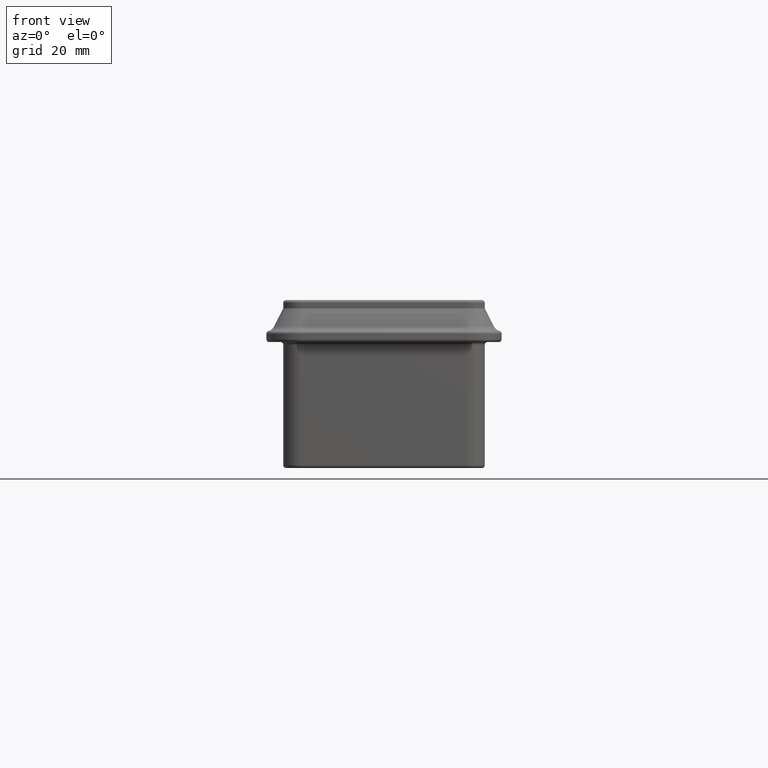
[diagram: clean part render]
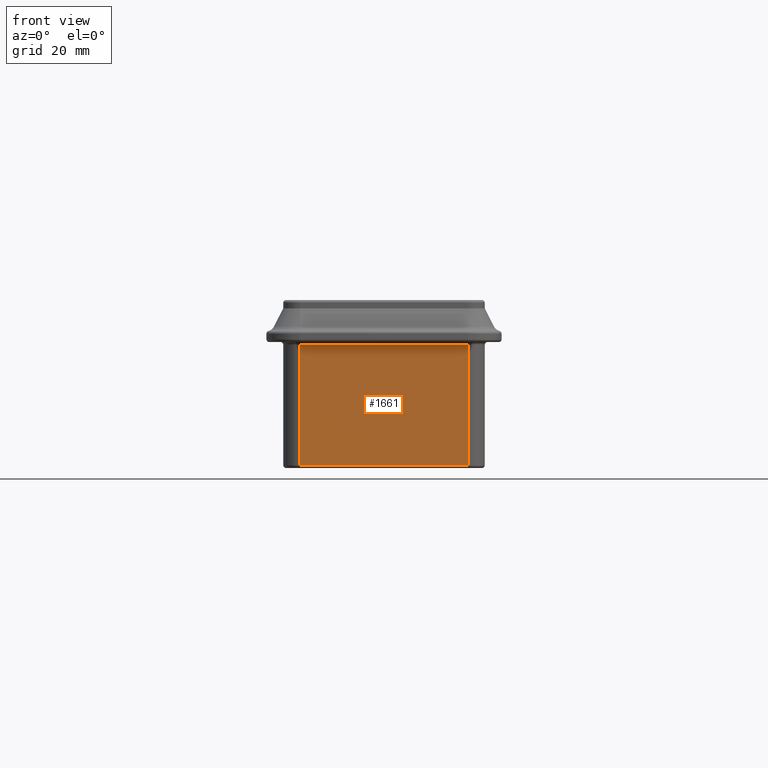
[diagram: same view with one face highlighted and labeled with its STEP entity id]
A machine part, front view. The second image highlights one B-rep face of the part: STEP entity #1661.
In plain terms, the highlighted planar face has unit normal (0, -1, 0).
Its self-contained STEP definition (entity closure, byte-faithful):
#46=PLANE('',#1893);
#174=FACE_OUTER_BOUND('',#286,.T.);
#286=EDGE_LOOP('',(#1416,#1417,#1418,#1419));
#336=LINE('',#2630,#464);
#343=LINE('',#2647,#471);
#406=LINE('',#2878,#534);
#410=LINE('',#2902,#538);
#464=VECTOR('',#2082,10.);
#471=VECTOR('',#2099,10.);
#534=VECTOR('',#2362,10.);
#538=VECTOR('',#2402,10.);
#699=VERTEX_POINT('',#2585);
#712=VERTEX_POINT('',#2623);
#718=VERTEX_POINT('',#2646);
#786=VERTEX_POINT('',#2875);
#873=EDGE_CURVE('',#712,#699,#336,.T.);
#881=EDGE_CURVE('',#699,#718,#343,.T.);
#997=EDGE_CURVE('',#718,#786,#406,.T.);
#1009=EDGE_CURVE('',#712,#786,#410,.T.);
#1416=ORIENTED_EDGE('',*,*,#873,.F.);
#1417=ORIENTED_EDGE('',*,*,#1009,.T.);
#1418=ORIENTED_EDGE('',*,*,#997,.F.);
#1419=ORIENTED_EDGE('',*,*,#881,.F.);
#1661=ADVANCED_FACE('',(#174),#46,.T.);
#1893=AXIS2_PLACEMENT_3D('',#2903,#2403,#2404);
#2082=DIRECTION('',(1.,2.96059473233375E-16,0.));
#2099=DIRECTION('',(-4.22996333961255E-32,-6.90805437544542E-16,-1.));
#2362=DIRECTION('',(-1.,-2.96059473233375E-16,0.));
#2402=DIRECTION('',(-4.22996333961255E-32,-6.90805437544542E-16,-1.));
#2403=DIRECTION('center_axis',(2.96059473233375E-16,-1.,6.90805437544542E-16));
#2404=DIRECTION('ref_axis',(-4.22996333961255E-32,-6.90805437544542E-16,
-1.));
#2585=CARTESIAN_POINT('',(30.,-114.,14.));
#2623=CARTESIAN_POINT('',(-30.,-114.,14.));
#2630=CARTESIAN_POINT('',(-36.,-114.,14.));
#2646=CARTESIAN_POINT('',(30.,-114.,-29.));
#2647=CARTESIAN_POINT('',(30.,-114.,-30.));
#2875=CARTESIAN_POINT('',(-30.,-114.,-29.));
#2878=CARTESIAN_POINT('',(-33.,-114.,-29.));
#2902=CARTESIAN_POINT('',(-30.,-114.,-30.));
#2903=CARTESIAN_POINT('Origin',(-30.,-114.,15.));